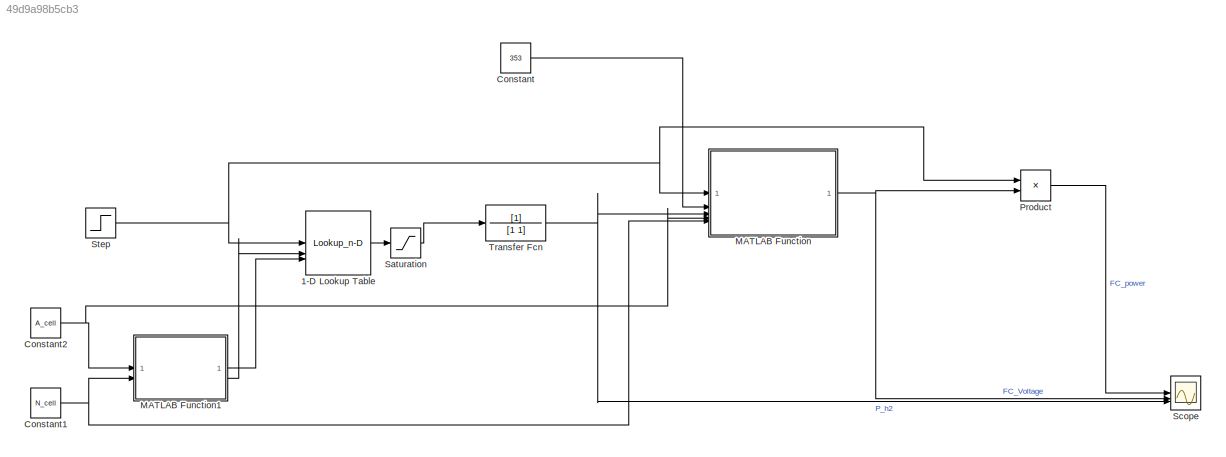
MODEL slx_49d9a98b5cb3
KIND model
CONFIG AbsTol = auto
CONFIG EnableMultiTasking = off
CONFIG FixedStep = auto
CONFIG MaxStep = auto
CONFIG MinStep = auto
CONFIG RelTol = 1e-3
CONFIG SampleTimeConstraint = Unconstrained
CONFIG SolverName = VariableStepAuto
CONFIG StartTime = 0.0
CONFIG StopTime = 22
BLOCK [Lookup_n-D] 1-D Lookup Table
  BreakpointsForDimension1 = I_P_TLU.Current
  BreakpointsForDimension1Source = Input port
  InputPortMap = u0,p221,p5
  InternalRulePriority = Speed
  NumberOfTableDimensions = 1
  RndMeth = Simplest
  Table = I_P_TLU.Pressure
  TableSource = Input port
BLOCK [Constant] Constant
  Value = 353
BLOCK [Constant] Constant1
  Value = N_cell
BLOCK [Constant] Constant2
  Value = A_cell
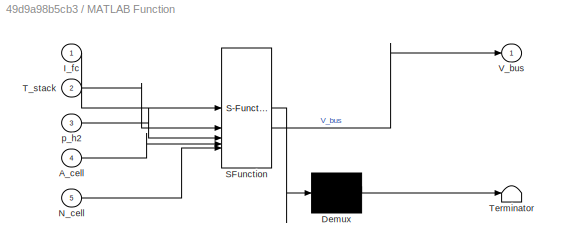
BLOCK [SubSystem] MATLAB Function
  ErrorFcn = Stateflow.Translate.translate
  LibrarySourceBlock = simulink/User-Defined\nFunctions/MATLAB Function
  PermitHierarchicalResolution = ExplicitOnly
  SFBlockType = MATLAB Function
  TreatAsAtomicUnit = on
BLOCK [Demux] MATLAB Function/ Demux 
  Outputs = 1
BLOCK [S-Function] MATLAB Function/ SFunction 
  EnableBusSupport = on
  FunctionName = sf_sfun
  PortCounts = [5 2]
  SFcnIsStateOwnerBlock = off
  SFunctionDeploymentMode = off
  Tag = Stateflow S-Function 2
BLOCK [Terminator] MATLAB Function/ Terminator 
BLOCK [Inport] MATLAB Function/A_cell
  Port = 4
BLOCK [Inport] MATLAB Function/I_fc
BLOCK [Inport] MATLAB Function/N_cell
  Port = 5
BLOCK [Inport] MATLAB Function/T_stack
  Port = 2
BLOCK [Outport] MATLAB Function/V_bus
BLOCK [Inport] MATLAB Function/p_h2
  Port = 3
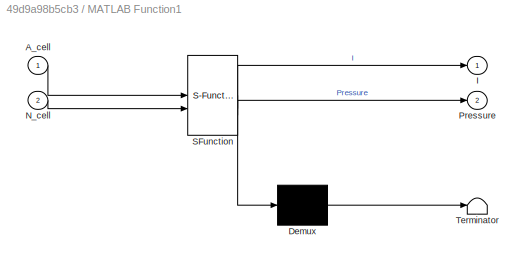
BLOCK [SubSystem] MATLAB Function1
  ErrorFcn = Stateflow.Translate.translate
  LibrarySourceBlock = simulink/User-Defined\nFunctions/MATLAB Function
  PermitHierarchicalResolution = ExplicitOnly
  SFBlockType = MATLAB Function
  TreatAsAtomicUnit = on
BLOCK [Demux] MATLAB Function1/ Demux 
  Outputs = 1
BLOCK [S-Function] MATLAB Function1/ SFunction 
  EnableBusSupport = on
  FunctionName = sf_sfun
  PortCounts = [2 3]
  SFcnIsStateOwnerBlock = off
  SFunctionDeploymentMode = off
  Tag = Stateflow S-Function 1
BLOCK [Terminator] MATLAB Function1/ Terminator 
BLOCK [Inport] MATLAB Function1/A_cell
BLOCK [Outport] MATLAB Function1/I
BLOCK [Inport] MATLAB Function1/N_cell
  Port = 2
BLOCK [Outport] MATLAB Function1/Pressure
  Port = 2
BLOCK [Product] Product
BLOCK [Saturate] Saturation
  LowerLimit = 0
  UpperLimit = 1.5
BLOCK [Scope] Scope
  Floating = off
  NumInputPorts = 3
  ScopeSpecificationString = Simulink.scopes.TimeScopeBlockCfg('CurrentConfiguration', extmgr.ConfigurationSet(extmgr.Configuration('Core','General UI',true),extmgr.Configuration('Core','Source UI',true),extmgr.Configuration('Sources','WiredSimulink',true,'DataLoggingVariableName','ScopeData2'),extmgr.Configuration('Visuals','Time Domain',true,'SerializedDisplays',{struct('MinYLimReal','20060.46213','MaxYLimReal','40547.86548...<+2821ch>
BLOCK [Step] Step
  After = 154
  Before = 107
  SampleTime = 0
  Time = 15
BLOCK [TransferFcn] Transfer Fcn
  Denominator = [1 1]
LINE 1-D Lookup Table:1 -> Saturation:1
NET Constant1:1 -> MATLAB Function1:2, MATLAB Function:5
NET Constant2:1 -> MATLAB Function1:1, MATLAB Function:4
LINE Constant:1 -> MATLAB Function:2
LINE MATLAB Function1:1 -> 1-D Lookup Table:3
LINE MATLAB Function1:2 -> 1-D Lookup Table:2
NET MATLAB Function:1 -> Product:2, Scope:2
LINE Product:1 -> Scope:1
LINE Saturation:1 -> Transfer Fcn:1
NET Step:1 -> 1-D Lookup Table:1, MATLAB Function:1, Product:1
NET Transfer Fcn:1 -> MATLAB Function:3, Scope:3
note: NET lines group one-source signal fan-out (src -> all destinations, sorted); 1:1 wires keep LINE
CHART MATLAB Function1 states=1 transitions=1
  STATE_LABEL 'eML_blk_kernel()'
  STATE_LABEL 'SCRIPT:\nfunction [I,Pressure] = fcn(A_cell,N_cell)\n\n    P_range = linspace(0.1,1.5);\n    I_range = linspace(0,450,10000);\n    I = zeros(100,1);\n    Pressure = zeros(100,1);\n    for j = 1:size(P_range,2)\n        for i = 1:size(I_range,2)\n            V = fcn(P_range(1,j),I_range(1,i),353);\n            if (V>246 && V<254)\n                I(j,1) = I_range(1,i);\n                Pressure(j,1) = P_range(...<+973ch>'
CHART MATLAB Function states=1 transitions=1
  STATE_LABEL 'eML_blk_kernel()'
  STATE_LABEL 'SCRIPT:\nfunction V_bus = fcn(I_fc,T_stack,p_h2,A_cell,N_cell)                %T_stack in K, T_fc in A, V_bus in V\n    F = 96485.33;       \n    R = 8.31447;\n    i_lim = 1.4;\n\n    E_cell = -237.14e+3/(-2*F);\n    i_cell = I_fc/A_cell;\n    \n    i0 = 8e-05;\n    alpha = 0.5;\n    t_membrane = 125e-4;\n    \n    a = 0.5;\n    lambda_m = 0.043 + 17.81*a - 39.85*a^2 + 36*a^3;\n    sigma_30 = 0.005139*lambda_m -...<+411ch>'
CHART  states=0 transitions=0
CHART  states=0 transitions=0
